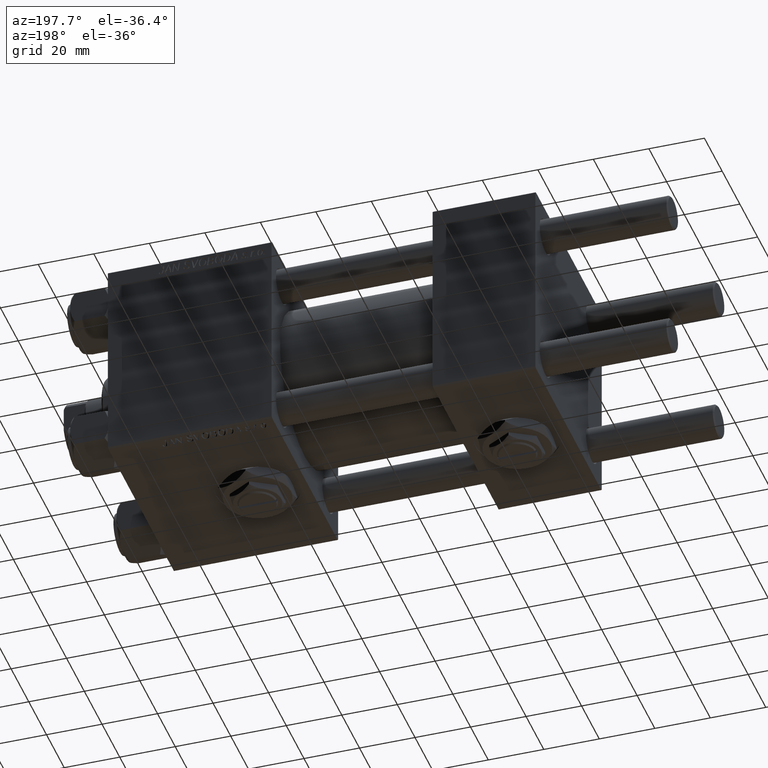
[diagram: clean part render]
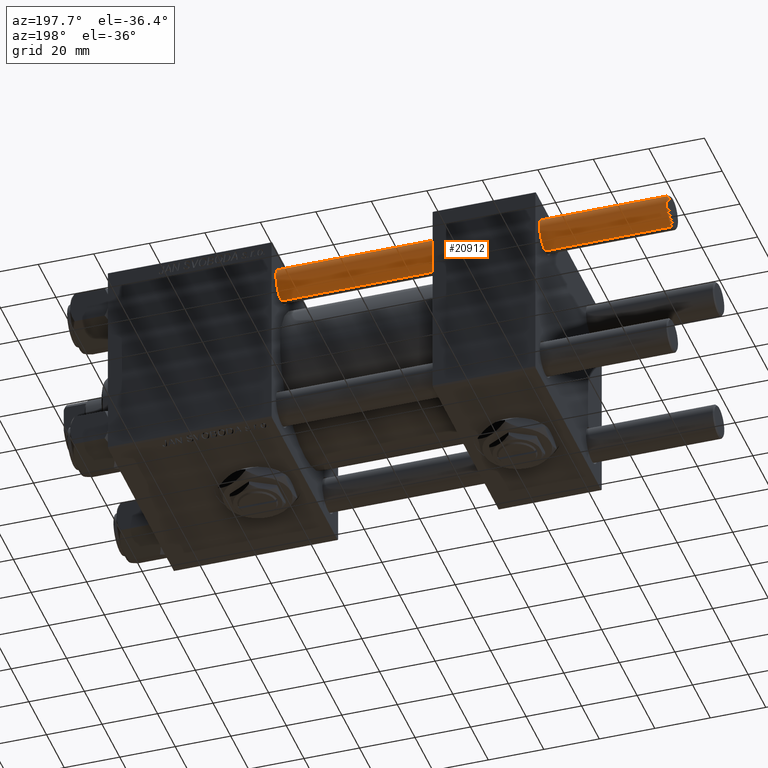
[diagram: same view with one face highlighted and labeled with its STEP entity id]
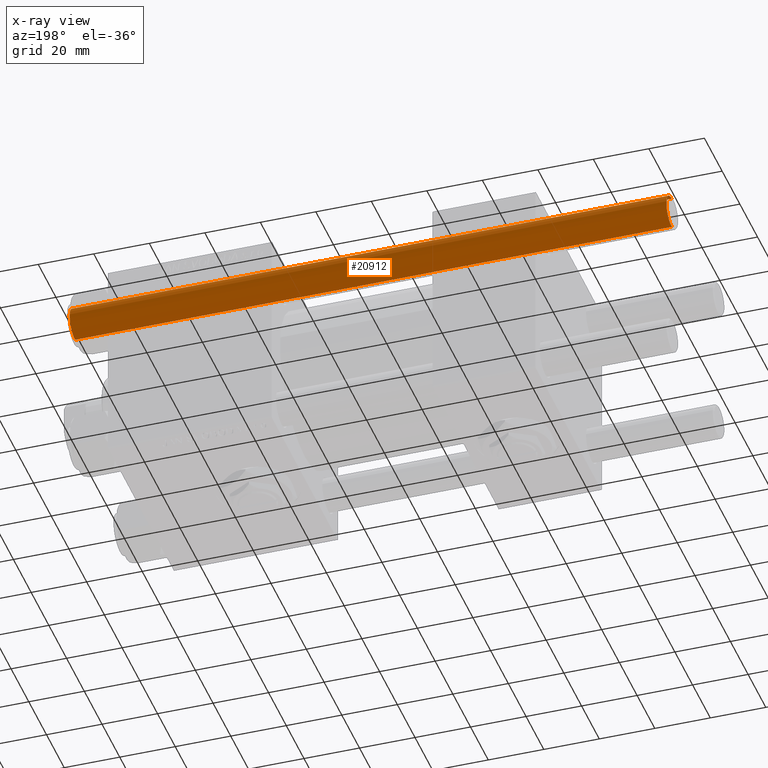
[diagram: x-ray of the same camera — body ghosted, the highlighted face saturated]
A machine part, auxiliary view. The second image highlights one B-rep face of the part: STEP entity #20912.
The next image is the same camera in x-ray: the body ghosted, the highlighted face saturated — about 0% of this face is hidden behind the body in this view.
In plain terms, the highlighted cylindrical surface (edge-blend (fillet) strip) has radius 6 mm, axis along (-1, -0, -0).
Its self-contained STEP definition (entity closure, byte-faithful):
#1850 = CYLINDRICAL_SURFACE ( 'NONE', #51320, 6.000000000000000888 ) ;
#1951 = DIRECTION ( 'NONE',  ( -0.000000000000000000, -0.000000000000000000, 1.000000000000000000 ) ) ;
#2556 = VECTOR ( 'NONE', #8071, 1000.000000000000000 ) ;
#4054 = CARTESIAN_POINT ( 'NONE',  ( 6.000000000000000888, 7.347880794884120722E-16, 215.5000000000000284 ) ) ;
#5571 = EDGE_CURVE ( 'NONE', #43230, #19581, #19851, .T. ) ;
#7148 = CARTESIAN_POINT ( 'NONE',  ( -6.000000000000000888, 0.000000000000000000, 215.5000000000000284 ) ) ;
#7317 = ORIENTED_EDGE ( 'NONE', *, *, #11127, .F. ) ;
#8046 = VERTEX_POINT ( 'NONE', #33423 ) ;
#8071 = DIRECTION ( 'NONE',  ( -0.000000000000000000, -0.000000000000000000, -1.000000000000000000 ) ) ;
#8747 = CARTESIAN_POINT ( 'NONE',  ( -6.000000000000000888, 0.000000000000000000, 216.0000000000000000 ) ) ;
#8978 = CIRCLE ( 'NONE', #19889, 6.000000000000000888 ) ;
#11127 = EDGE_CURVE ( 'NONE', #43348, #8046, #12673, .T. ) ;
#11709 = ORIENTED_EDGE ( 'NONE', *, *, #30392, .T. ) ;
#12673 = LINE ( 'NONE', #8747, #49504 ) ;
#14128 = CARTESIAN_POINT ( 'NONE',  ( 0.000000000000000000, 0.000000000000000000, 216.0000000000000000 ) ) ;
#19581 = VERTEX_POINT ( 'NONE', #28915 ) ;
#19851 = LINE ( 'NONE', #32415, #2556 ) ;
#19889 = AXIS2_PLACEMENT_3D ( 'NONE', #34128, #1951, #26541 ) ;
#20912 = ADVANCED_FACE ( 'NONE', ( #50017 ), #1850, .T. ) ;
#23901 = CARTESIAN_POINT ( 'NONE',  ( 0.000000000000000000, 0.000000000000000000, 215.5000000000000284 ) ) ;
#25129 = CIRCLE ( 'NONE', #31003, 6.000000000000000888 ) ;
#26541 = DIRECTION ( 'NONE',  ( 1.000000000000000000, 0.000000000000000000, 0.000000000000000000 ) ) ;
#27292 = ORIENTED_EDGE ( 'NONE', *, *, #5571, .T. ) ;
#28915 = CARTESIAN_POINT ( 'NONE',  ( 6.000000000000000888, 7.347880794884120722E-16, 0.5000000000000004441 ) ) ;
#30355 = DIRECTION ( 'NONE',  ( -1.000000000000000000, 0.000000000000000000, 0.000000000000000000 ) ) ;
#30392 = EDGE_CURVE ( 'NONE', #19581, #8046, #8978, .T. ) ;
#31003 = AXIS2_PLACEMENT_3D ( 'NONE', #23901, #40145, #35684 ) ;
#32415 = CARTESIAN_POINT ( 'NONE',  ( 6.000000000000000888, 7.347880794884120722E-16, 216.0000000000000000 ) ) ;
#33423 = CARTESIAN_POINT ( 'NONE',  ( -6.000000000000000888, 0.000000000000000000, 0.5000000000000004441 ) ) ;
#34128 = CARTESIAN_POINT ( 'NONE',  ( 0.000000000000000000, 0.000000000000000000, 0.5000000000000004441 ) ) ;
#35684 = DIRECTION ( 'NONE',  ( 1.000000000000000000, 0.000000000000000000, 0.000000000000000000 ) ) ;
#37194 = DIRECTION ( 'NONE',  ( -0.000000000000000000, -0.000000000000000000, -1.000000000000000000 ) ) ;
#40145 = DIRECTION ( 'NONE',  ( 0.000000000000000000, 0.000000000000000000, -1.000000000000000000 ) ) ;
#40326 = ORIENTED_EDGE ( 'NONE', *, *, #45294, .T. ) ;
#43230 = VERTEX_POINT ( 'NONE', #4054 ) ;
#43348 = VERTEX_POINT ( 'NONE', #7148 ) ;
#45294 = EDGE_CURVE ( 'NONE', #43348, #43230, #25129, .T. ) ;
#48818 = DIRECTION ( 'NONE',  ( -0.000000000000000000, -0.000000000000000000, -1.000000000000000000 ) ) ;
#49504 = VECTOR ( 'NONE', #48818, 1000.000000000000000 ) ;
#50017 = FACE_OUTER_BOUND ( 'NONE', #50030, .T. ) ;
#50030 = EDGE_LOOP ( 'NONE', ( #40326, #27292, #11709, #7317 ) ) ;
#51320 = AXIS2_PLACEMENT_3D ( 'NONE', #14128, #37194, #30355 ) ;